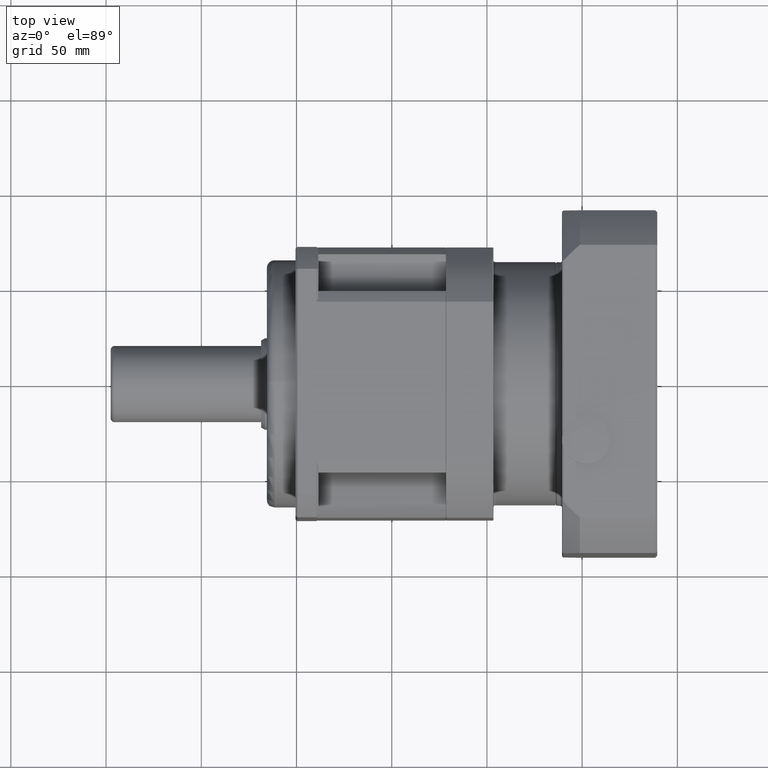
[diagram: clean part render]
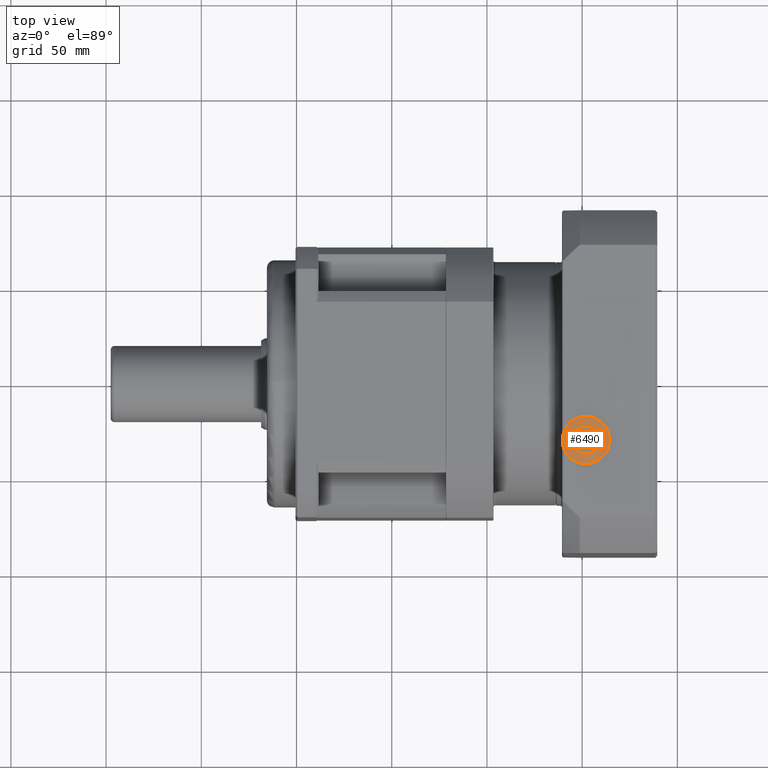
[diagram: same view with one face highlighted and labeled with its STEP entity id]
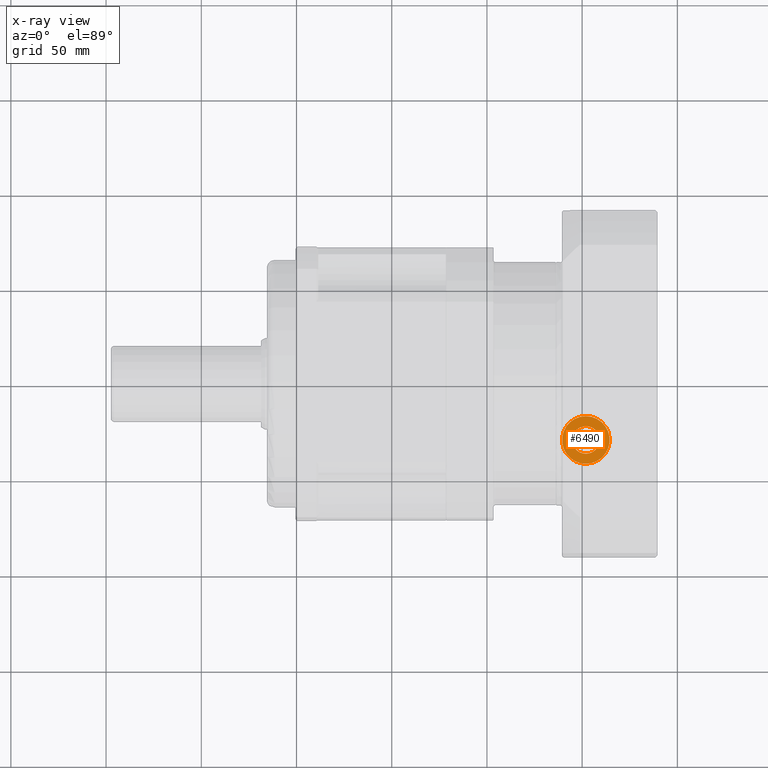
[diagram: x-ray of the same camera — body ghosted, the highlighted face saturated]
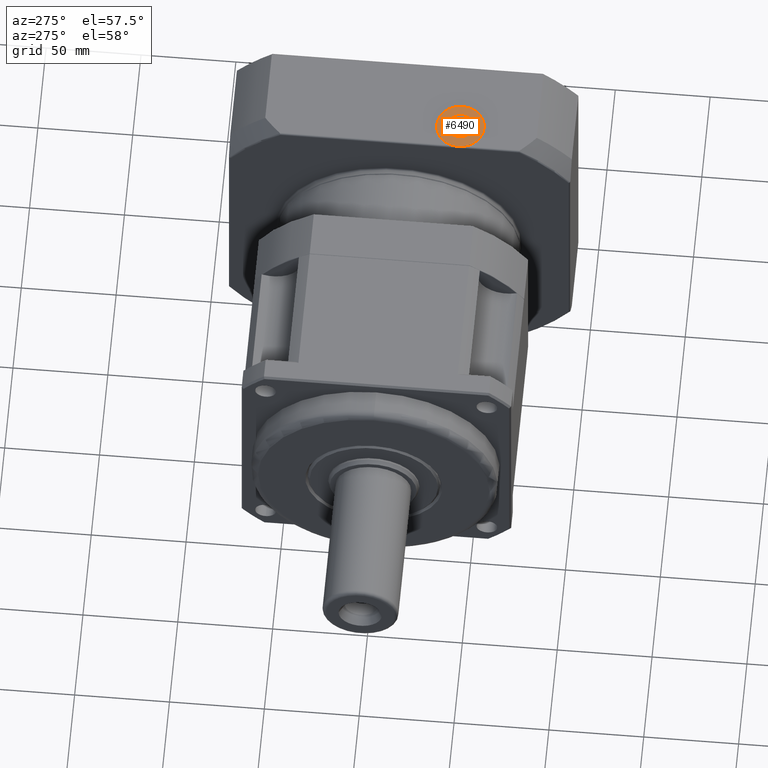
[diagram: same view with one face highlighted and labeled with its STEP entity id]
A machine part, top view. The second image highlights one B-rep face of the part: STEP entity #6490.
The next image is the same camera in x-ray: the body ghosted, the highlighted face saturated — about 0% of this face is hidden behind the body in this view.
A second angle (auxiliary view) of the same face is appended — the face is thin or edge-on in the first view.
In plain terms, the highlighted conical surface has half-angle 86.73 deg.
Its self-contained STEP definition (entity closure, byte-faithful):
#1189=CONICAL_SURFACE('',#7024,9.875,86.7295120768165);
#1429=FACE_BOUND('',#2185,.T.);
#1682=FACE_OUTER_BOUND('',#2184,.T.);
#2184=EDGE_LOOP('',(#4798));
#2185=EDGE_LOOP('',(#4799));
#2745=CIRCLE('',#7023,7.25);
#2746=CIRCLE('',#7025,12.5);
#3175=VERTEX_POINT('',#10082);
#3176=VERTEX_POINT('',#10085);
#3812=EDGE_CURVE('',#3175,#3175,#2745,.T.);
#3813=EDGE_CURVE('',#3176,#3176,#2746,.T.);
#4798=ORIENTED_EDGE('',*,*,#3812,.T.);
#4799=ORIENTED_EDGE('',*,*,#3813,.F.);
#6490=ADVANCED_FACE('',(#1682,#1429),#1189,.T.);
#7023=AXIS2_PLACEMENT_3D('',#10083,#8071,#8072);
#7024=AXIS2_PLACEMENT_3D('',#10084,#8073,#8074);
#7025=AXIS2_PLACEMENT_3D('',#10086,#8075,#8076);
#8071=DIRECTION('center_axis',(2.15746048676953E-15,1.98700431520927E-15,
-1.));
#8072=DIRECTION('ref_axis',(-1.,-4.62602005398583E-16,-2.15746048676953E-15));
#8073=DIRECTION('center_axis',(2.15746048676953E-15,1.98700431520927E-15,
-1.));
#8074=DIRECTION('ref_axis',(-4.62602005398587E-16,1.,2.00779508947685E-15));
#8075=DIRECTION('center_axis',(2.15746048676953E-15,1.98700431520927E-15,
-1.));
#8076=DIRECTION('ref_axis',(-1.,-4.62602005398583E-16,-2.15746048676953E-15));
#10082=CARTESIAN_POINT('',(-98.0593852728369,-174.060004596179,13.9974740070665));
#10083=CARTESIAN_POINT('Origin',(-98.0593852728369,-181.310004596179,13.9974740070665));
#10084=CARTESIAN_POINT('Origin',(-98.0593852728369,-181.310004596179,13.8474740070665));
#10085=CARTESIAN_POINT('',(-98.0593852728369,-168.810004596179,13.6974740070665));
#10086=CARTESIAN_POINT('Origin',(-98.0593852728369,-181.310004596179,13.6974740070665));